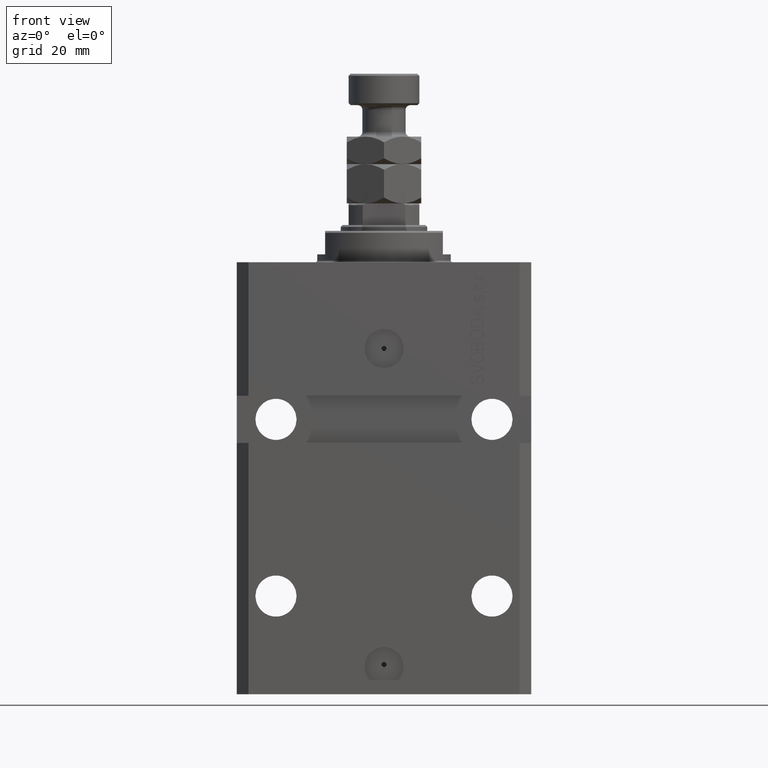
[diagram: clean part render]
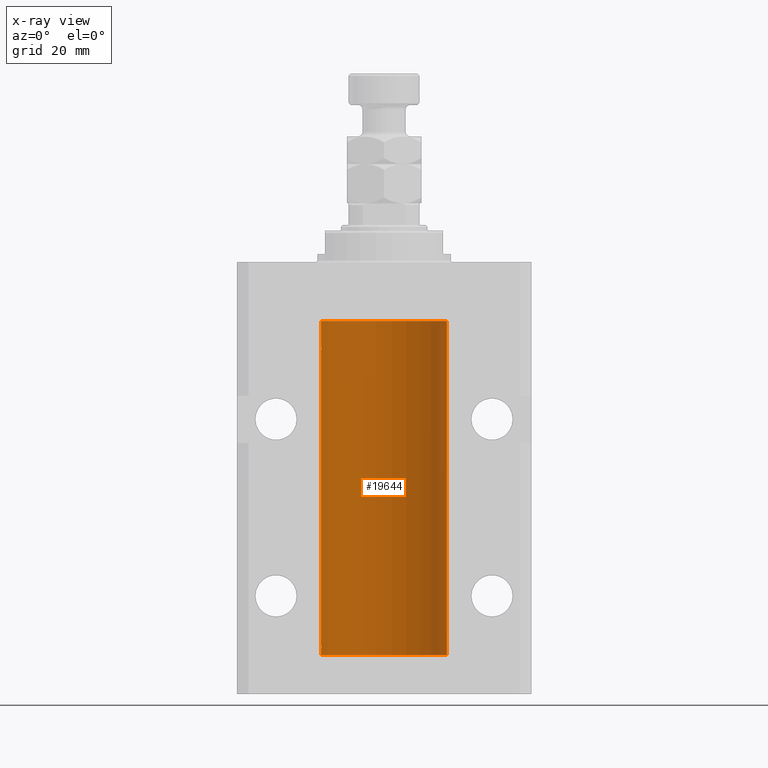
[diagram: x-ray — body ghosted, one internal face saturated and labeled with its STEP entity id]
A machine part, front view, then the same camera in x-ray: the body is ghosted and one INTERNAL B-rep face — a face not visible from any outside direction — is saturated and labeled: STEP entity #19644.
In plain terms, the highlighted cylindrical surface (partial cylindrical patch) has radius 16 mm, axis along (0, 0, 1).
Its self-contained STEP definition (entity closure, byte-faithful):
#148 = EDGE_CURVE ( 'NONE', #43310, #48049, #39236, .T. ) ;
#1417 = CARTESIAN_POINT ( 'NONE',  ( -15.99999999999998934, 0.1631714642025804407, -98.62499999999987210 ) ) ;
#2941 = CARTESIAN_POINT ( 'NONE',  ( -16.00000000000000000, 0.1631714642025800244, -22.62499999999985789 ) ) ;
#3199 = CARTESIAN_POINT ( 'NONE',  ( -15.98778717651346071, 0.6250289588122140971, -22.08131585687052478 ) ) ;
#3403 = CIRCLE ( 'NONE', #13587, 16.00000000000000000 ) ;
#4428 = EDGE_CURVE ( 'NONE', #41356, #12047, #6388, .T. ) ;
#5284 = CARTESIAN_POINT ( 'NONE',  ( 0.000000000000000000, 0.000000000000000000, -100.0999999999999943 ) ) ;
#5296 = CARTESIAN_POINT ( 'NONE',  ( 16.00000000000000000, 0.000000000000000000, -15.00000000000000000 ) ) ;
#5533 = DIRECTION ( 'NONE',  ( 0.000000000000000000, 0.000000000000000000, 1.000000000000000000 ) ) ;
#6388 = B_SPLINE_CURVE_WITH_KNOTS ( 'NONE', 3,
 ( #14101, #33682, #10650, #32931, #44336, #25517, #40625, #3199, #26251, #14601, #29712, #6666, #2941, #21781 ),
 .UNSPECIFIED., .F., .F.,
 ( 4, 2, 2, 2, 2, 2, 4 ),
 ( 1.597328219370744179E-19, 0.0002442776652680942405, 0.0004885553305361882643, 0.0009771106610723839011, 0.001221388326340481665, 0.001465665991608579430, 0.001954221322144767369 ),
 .UNSPECIFIED. ) ;
#6474 = DIRECTION ( 'NONE',  ( 0.000000000000000000, 0.000000000000000000, 1.000000000000000000 ) ) ;
#6666 = CARTESIAN_POINT ( 'NONE',  ( -15.99711699979842017, 0.3253759916140657737, -22.55856151623175521 ) ) ;
#7595 = VECTOR ( 'NONE', #14091, 1000.000000000000000 ) ;
#7767 = ORIENTED_EDGE ( 'NONE', *, *, #13784, .T. ) ;
#8191 = EDGE_CURVE ( 'NONE', #41356, #14490, #39918, .T. ) ;
#8526 = EDGE_CURVE ( 'NONE', #32308, #12047, #40784, .T. ) ;
#8880 = CARTESIAN_POINT ( 'NONE',  ( -15.99934216141748244, 0.1636497843296308152, -97.39126528029306940 ) ) ;
#9949 = CARTESIAN_POINT ( 'NONE',  ( -16.00000000000000000, 1.959434878635765131E-15, -100.0999999999999943 ) ) ;
#10650 = CARTESIAN_POINT ( 'NONE',  ( -15.99934216141748244, 0.1636497843296417787, -21.39126528029306229 ) ) ;
#12047 = VERTEX_POINT ( 'NONE', #38607 ) ;
#13074 = CARTESIAN_POINT ( 'NONE',  ( -15.99707730059171240, 0.3150375992092294686, -97.45402333202572720 ) ) ;
#13312 = CARTESIAN_POINT ( 'NONE',  ( -15.98778717651346604, 0.6250289588122097673, -98.08131585687051768 ) ) ;
#13587 = AXIS2_PLACEMENT_3D ( 'NONE', #5284, #5533, #24616 ) ;
#13784 = EDGE_CURVE ( 'NONE', #19301, #14490, #14429, .T. ) ;
#14091 = DIRECTION ( 'NONE',  ( -0.000000000000000000, -0.000000000000000000, 1.000000000000000000 ) ) ;
#14101 = CARTESIAN_POINT ( 'NONE',  ( -16.00000000000000000, 1.643679961284177128E-16, -21.37499999999999645 ) ) ;
#14171 = VECTOR ( 'NONE', #36449, 1000.000000000000000 ) ;
#14429 = CIRCLE ( 'NONE', #44484, 16.00000000000000000 ) ;
#14490 = VERTEX_POINT ( 'NONE', #20135 ) ;
#14601 = CARTESIAN_POINT ( 'NONE',  ( -15.99070426498503217, 0.5462220647145618058, -22.31460064614143590 ) ) ;
#15161 = CARTESIAN_POINT ( 'NONE',  ( -16.00000000000013145, 3.685127046438747128E-13, -98.62500000000343903 ) ) ;
#15323 = ORIENTED_EDGE ( 'NONE', *, *, #4428, .T. ) ;
#17180 = CARTESIAN_POINT ( 'NONE',  ( -16.00000000000000000, 1.959434878635765131E-15, -100.0999999999999943 ) ) ;
#17639 = DIRECTION ( 'NONE',  ( 1.000000000000000000, 0.000000000000000000, 0.000000000000000000 ) ) ;
#17823 = LINE ( 'NONE', #36896, #7595 ) ;
#18627 = AXIS2_PLACEMENT_3D ( 'NONE', #37401, #48536, #49023 ) ;
#19301 = VERTEX_POINT ( 'NONE', #5296 ) ;
#19644 = ADVANCED_FACE ( 'NONE', ( #45308 ), #26243, .F. ) ;
#20135 = CARTESIAN_POINT ( 'NONE',  ( -16.00000000000000000, 1.959434878635765131E-15, -15.00000000000000000 ) ) ;
#20262 = CARTESIAN_POINT ( 'NONE',  ( -15.99070426498503572, 0.5462220647145610286, -98.31460064614144301 ) ) ;
#21781 = CARTESIAN_POINT ( 'NONE',  ( -16.00000000000013145, 3.685127038166941002E-13, -22.62500000000341771 ) ) ;
#21838 = EDGE_CURVE ( 'NONE', #34854, #19301, #17823, .T. ) ;
#21956 = VECTOR ( 'NONE', #32282, 1000.000000000000000 ) ;
#22879 = CARTESIAN_POINT ( 'NONE',  ( -16.00000000000000000, -1.303459030566954747E-14, -97.37500000000000000 ) ) ;
#23984 = CARTESIAN_POINT ( 'NONE',  ( -15.98779057735153941, 0.6249419637998017141, -97.83670145863504786 ) ) ;
#24465 = CARTESIAN_POINT ( 'NONE',  ( -15.98844267028590949, 0.6088369347963275002, -98.16324735024325321 ) ) ;
#24616 = DIRECTION ( 'NONE',  ( 1.000000000000000000, 0.000000000000000000, 0.000000000000000000 ) ) ;
#24720 = CARTESIAN_POINT ( 'NONE',  ( -15.99711699979841661, 0.3253759916140614439, -98.55856151623174810 ) ) ;
#24763 = ORIENTED_EDGE ( 'NONE', *, *, #8526, .F. ) ;
#25517 = CARTESIAN_POINT ( 'NONE',  ( -15.99070653155267685, 0.5573233280232986475, -21.67348148680506625 ) ) ;
#26243 = CYLINDRICAL_SURFACE ( 'NONE', #18627, 16.00000000000000000 ) ;
#26251 = CARTESIAN_POINT ( 'NONE',  ( -15.98844267028591482, 0.6088369347963316081, -22.16324735024328518 ) ) ;
#28187 = CARTESIAN_POINT ( 'NONE',  ( -16.00000000000000711, 0.08259886010188650929, -97.37500000000000000 ) ) ;
#28217 = ORIENTED_EDGE ( 'NONE', *, *, #21838, .T. ) ;
#28435 = CARTESIAN_POINT ( 'NONE',  ( -16.00000000000000000, -1.303459030566954747E-14, -97.37500000000000000 ) ) ;
#29539 = CARTESIAN_POINT ( 'NONE',  ( -16.00000000000000000, 1.959434878635765131E-15, -100.0999999999999943 ) ) ;
#29712 = CARTESIAN_POINT ( 'NONE',  ( -15.99228023727724413, 0.5003781296993413674, -22.38347829554236057 ) ) ;
#30048 = VECTOR ( 'NONE', #47959, 1000.000000000000000 ) ;
#31656 = CARTESIAN_POINT ( 'NONE',  ( -16.00000000000013145, 3.685127046438747128E-13, -98.62500000000343903 ) ) ;
#32282 = DIRECTION ( 'NONE',  ( -0.000000000000000000, -0.000000000000000000, 1.000000000000000000 ) ) ;
#32308 = VERTEX_POINT ( 'NONE', #22879 ) ;
#32931 = CARTESIAN_POINT ( 'NONE',  ( -15.99707730059171240, 0.3150375992092407373, -21.45402333202571654 ) ) ;
#33682 = CARTESIAN_POINT ( 'NONE',  ( -16.00000000000000711, 0.08259886010189904093, -21.37500000000000000 ) ) ;
#34854 = VERTEX_POINT ( 'NONE', #35091 ) ;
#35091 = CARTESIAN_POINT ( 'NONE',  ( 16.00000000000000000, 0.000000000000000000, -100.0999999999999943 ) ) ;
#36449 = DIRECTION ( 'NONE',  ( -0.000000000000000000, -0.000000000000000000, 1.000000000000000000 ) ) ;
#36896 = CARTESIAN_POINT ( 'NONE',  ( 16.00000000000000000, 0.000000000000000000, -100.0999999999999943 ) ) ;
#37401 = CARTESIAN_POINT ( 'NONE',  ( 0.000000000000000000, 0.000000000000000000, -100.0999999999999943 ) ) ;
#38607 = CARTESIAN_POINT ( 'NONE',  ( -16.00000000000013145, 3.685127038166941002E-13, -22.62500000000341771 ) ) ;
#39236 = LINE ( 'NONE', #17180, #21956 ) ;
#39918 = LINE ( 'NONE', #9949, #14171 ) ;
#40076 = CARTESIAN_POINT ( 'NONE',  ( -15.99070653155267685, 0.5573233280232928744, -97.67348148680505915 ) ) ;
#40218 = EDGE_CURVE ( 'NONE', #34854, #43310, #3403, .T. ) ;
#40625 = CARTESIAN_POINT ( 'NONE',  ( -15.98779057735153941, 0.6249419637998100407, -21.83670145863507273 ) ) ;
#40784 = LINE ( 'NONE', #44979, #30048 ) ;
#41356 = VERTEX_POINT ( 'NONE', #48744 ) ;
#41955 = ORIENTED_EDGE ( 'NONE', *, *, #40218, .F. ) ;
#42207 = ORIENTED_EDGE ( 'NONE', *, *, #8191, .F. ) ;
#43279 = ORIENTED_EDGE ( 'NONE', *, *, #148, .F. ) ;
#43310 = VERTEX_POINT ( 'NONE', #29539 ) ;
#43550 = CARTESIAN_POINT ( 'NONE',  ( -15.99228023727724057, 0.5003781296993360383, -98.38347829554236057 ) ) ;
#44336 = CARTESIAN_POINT ( 'NONE',  ( -15.99548640841683067, 0.3843705577988847377, -21.50046628527008608 ) ) ;
#44404 = EDGE_LOOP ( 'NONE', ( #43279, #41955, #28217, #7767, #42207, #15323, #24763, #46178 ) ) ;
#44484 = AXIS2_PLACEMENT_3D ( 'NONE', #48594, #6474, #17639 ) ;
#44979 = CARTESIAN_POINT ( 'NONE',  ( -16.00000000000000000, 1.959434878635765131E-15, -100.0999999999999943 ) ) ;
#45308 = FACE_OUTER_BOUND ( 'NONE', #44404, .T. ) ;
#46178 = ORIENTED_EDGE ( 'NONE', *, *, #48572, .T. ) ;
#47015 = CARTESIAN_POINT ( 'NONE',  ( -15.99548640841682712, 0.3843705577988784650, -97.50046628527007897 ) ) ;
#47959 = DIRECTION ( 'NONE',  ( -0.000000000000000000, -0.000000000000000000, 1.000000000000000000 ) ) ;
#48049 = VERTEX_POINT ( 'NONE', #15161 ) ;
#48536 = DIRECTION ( 'NONE',  ( -0.000000000000000000, -0.000000000000000000, 1.000000000000000000 ) ) ;
#48572 = EDGE_CURVE ( 'NONE', #32308, #48049, #48713, .T. ) ;
#48594 = CARTESIAN_POINT ( 'NONE',  ( 0.000000000000000000, 0.000000000000000000, -15.00000000000000000 ) ) ;
#48713 = B_SPLINE_CURVE_WITH_KNOTS ( 'NONE', 3,
 ( #28435, #28187, #8880, #13074, #47015, #40076, #23984, #13312, #24465, #20262, #43550, #24720, #1417, #31656 ),
 .UNSPECIFIED., .F., .F.,
 ( 4, 2, 2, 2, 2, 2, 4 ),
 ( 1.003919637555167698E-18, 0.0002442776652680894158, 0.0004885553305361776391, 0.0009771106610723541940, 0.001221388326340463017, 0.001465665991608572274, 0.001954221322144760863 ),
 .UNSPECIFIED. ) ;
#48744 = CARTESIAN_POINT ( 'NONE',  ( -16.00000000000000000, 1.643679961284177128E-16, -21.37499999999999645 ) ) ;
#49023 = DIRECTION ( 'NONE',  ( 1.000000000000000000, 0.000000000000000000, 0.000000000000000000 ) ) ;